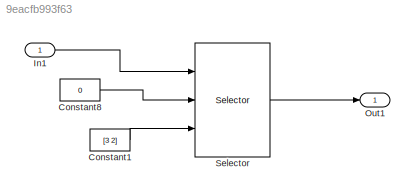
MODEL slx_9eacfb993f63
KIND model
CONFIG AbsTol = auto
CONFIG EnableMultiTasking = on
CONFIG FixedStep = 0.1
CONFIG MaxStep = 1
CONFIG MinStep = auto
CONFIG RelTol = 1e-3
CONFIG SampleTimeConstraint = Unconstrained
CONFIG Solver = FixedStepAuto
CONFIG SolverName = FixedStepAuto
CONFIG StartTime = 0.0
CONFIG StopTime = 0
WORKSPACE source: MAT-file member
WORKSPACE compositionalMap: struct (value not decoded)
WORKSPACE MCOS: class17 (value not decoded)
BLOCK [Constant] Constant1
  Value = [3 2]
BLOCK [Constant] Constant8
  Value = 0
BLOCK [Inport] In1
  IconDisplay = Port number
  PortDimensions = [4, 4, 4, 4]
BLOCK [Outport] Out1
  IconDisplay = Port number
BLOCK [Selector] Selector
  IndexMode = Zero-based
  IndexOptions = Starting index (port),Starting index (dialog),Index vector (port),Select all
  Indices = [1 0 0],2,1,1
  InputPortWidth = 3
  NumberOfDimensions = 4
  OutputSizes = 2,1,1,1
  Ports = [3, 1]
LINE Constant1:1 -> Selector:3
LINE Constant8:1 -> Selector:2
LINE In1:1 -> Selector:1
LINE Selector:1 -> Out1:1
